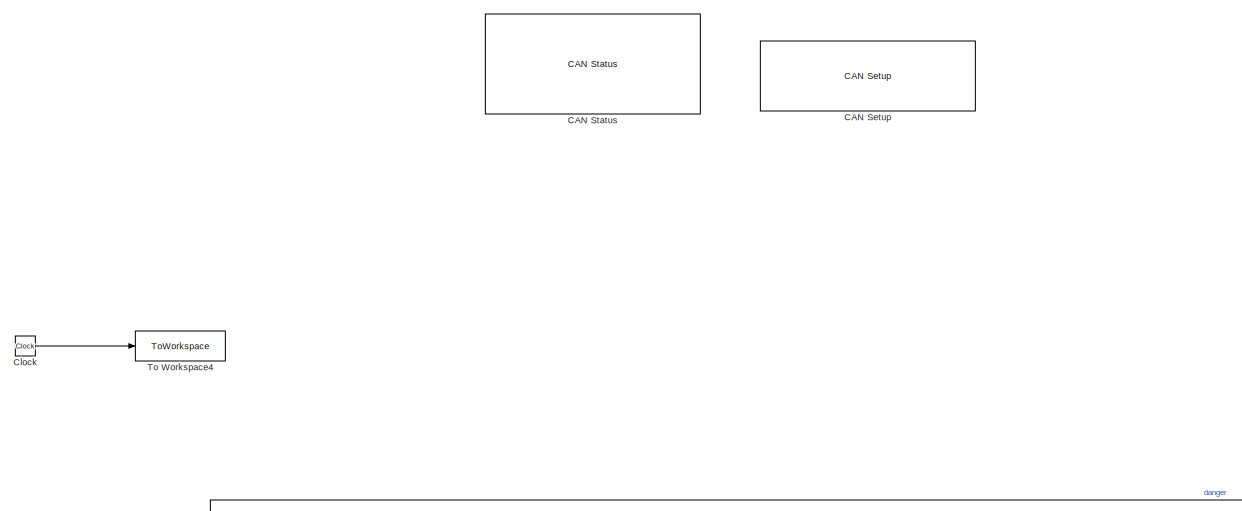
[diagram: root canvas - part 1/5, top center region]
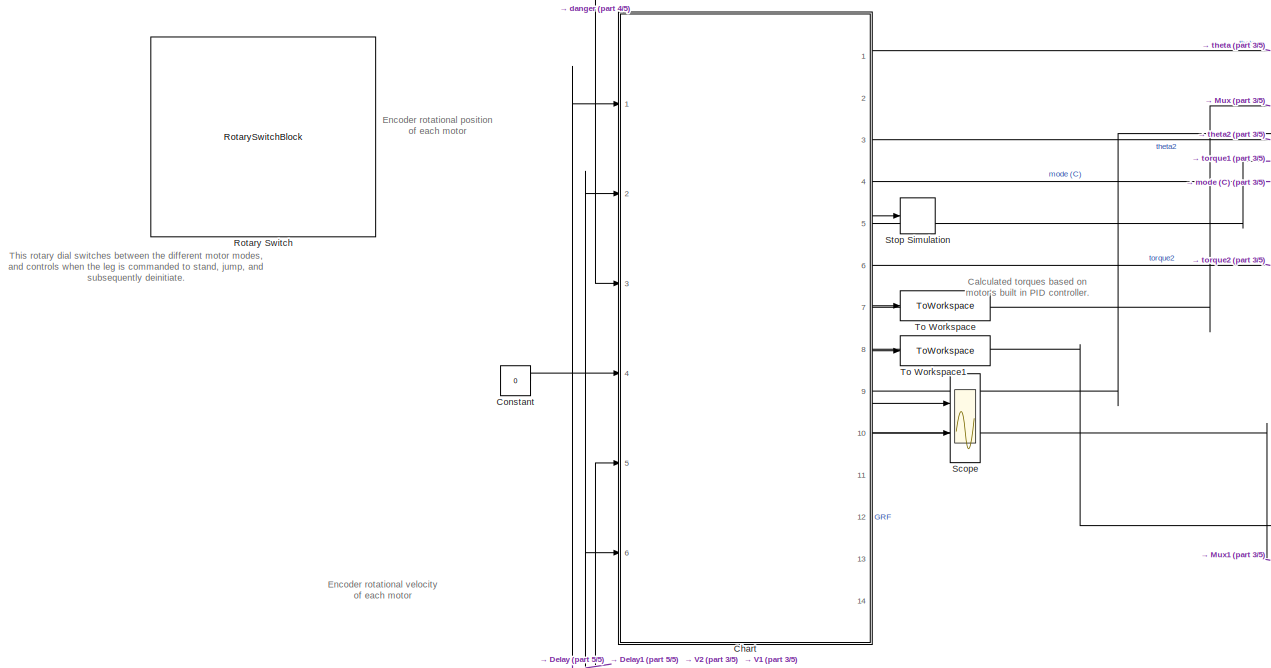
[diagram: root canvas - part 2/5, middle left region]
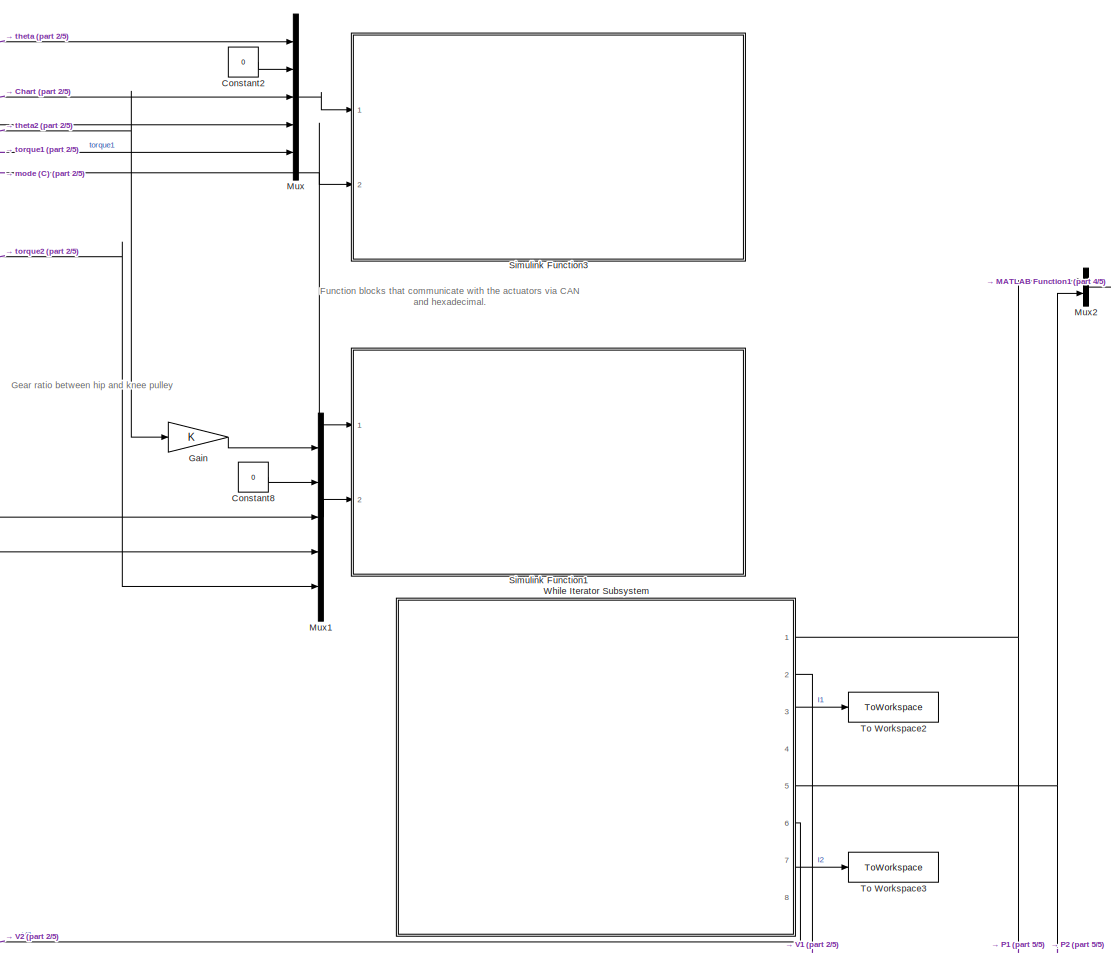
[diagram: root canvas - part 3/5, middle right region]
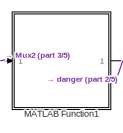
[diagram: root canvas - part 4/5, middle right region]
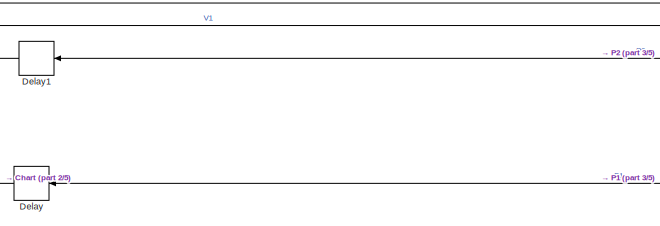
[diagram: root canvas - part 5/5, bottom center region]
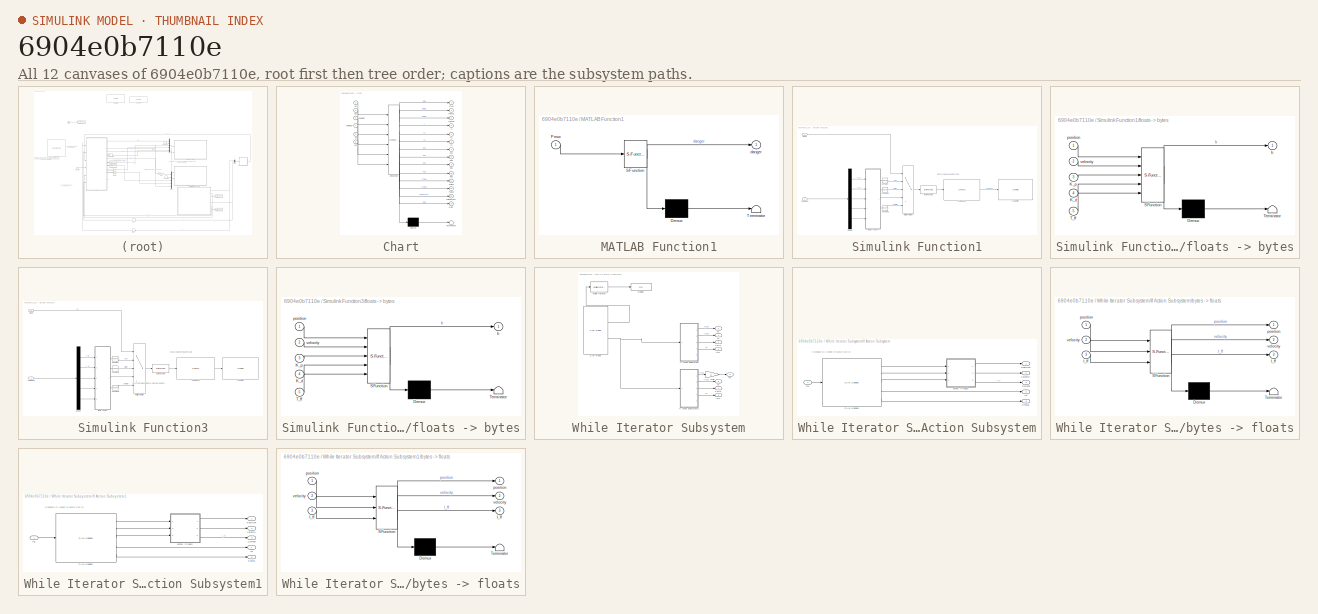
[diagram: thumbnail index - all 12 canvases of the model, root first then tree order]
MODEL slx_6904e0b7110e
KIND model
CONFIG AbsTol = auto
CONFIG EnableMultiTasking = off
CONFIG FixedStep = 0.001
CONFIG MaxStep = auto
CONFIG MinStep = auto
CONFIG RelTol = 1e-3
CONFIG SampleTimeConstraint = Unconstrained
CONFIG SolverName = FixedStepAuto
CONFIG StartTime = 0.0
CONFIG StopTime = inf
BLOCK [Reference] CAN Setup   REF=speedgoatlib_IO691/CAN Setup 
  Ports = []
  SourceBlock = speedgoatlib_IO691/CAN Setup
  SourceProductName = Simulink Real-Time: Speedgoat I/O Blockset
  SourceType = setup_IO691
BLOCK [Reference] CAN Status  REF=speedgoatlib_IO691/CAN Status
  Ports = []
  SourceBlock = speedgoatlib_IO691/CAN Status
  SourceProductName = Simulink Real-Time: Speedgoat I/O Blockset
  SourceType = status_IO691
  UserDataPersistent = on
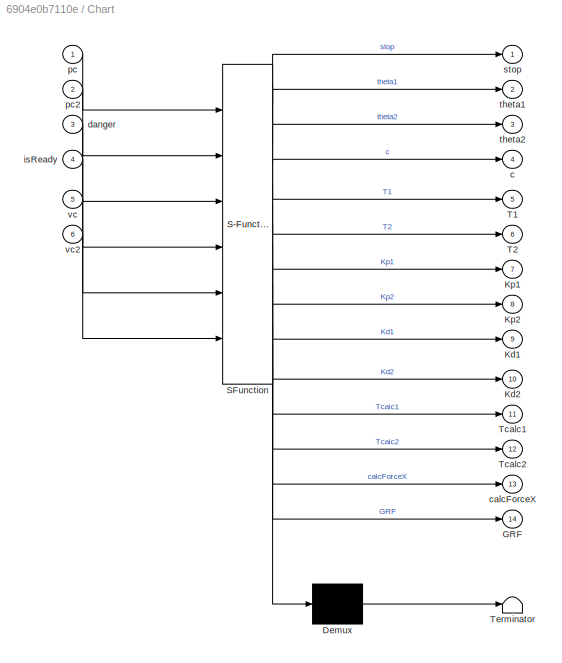
BLOCK [SubSystem] Chart
  ErrorFcn = Stateflow.Translate.translate
  PermitHierarchicalResolution = ExplicitOnly
  PortSchema = {"entries":[{"content":{"sides":[{"content":{"connectorIds":["In1","In2","In3","In4","In5","In6"]},"type":"ConnectorPlacement.EquallySpacedRectSide","uuid":"09499f21-f50c-4ce4-914e-8b9942bcc246"},{"content":{"connectorIds":["Out2","Out7","Out9","Out5","Out1","Out4","Out11","Out12","Out13","Out14","Out3","Out8","Out10","Out6"],"side":"RIGHT"},"type":"ConnectorPlacement.EquallySpacedRectSide","uuid"...<+366ch>
  Ports = [6, 14]
  RequestExecContextInheritance = off
  SFBlockType = Chart
  TreatAsAtomicUnit = on
BLOCK [Demux] Chart/ Demux 
  Outputs = 1
  Ports = [1, 1]
BLOCK [S-Function] Chart/ SFunction 
  EnableBusSupport = on
  FunctionName = sf_sfun
  PortCounts = [6 15]
  Ports = [6, 15]
  SFcnIsStateOwnerBlock = off
  SFunctionDeploymentMode = off
  Tag = Stateflow S-Function 8
BLOCK [Terminator] Chart/ Terminator 
BLOCK [Outport] Chart/GRF
  Port = 14
BLOCK [Outport] Chart/Kd1
  Port = 9
BLOCK [Outport] Chart/Kd2
  Port = 10
BLOCK [Outport] Chart/Kp1
  Port = 7
BLOCK [Outport] Chart/Kp2
  Port = 8
BLOCK [Outport] Chart/T1
  Port = 5
BLOCK [Outport] Chart/T2
  Port = 6
BLOCK [Outport] Chart/Tcalc1
  Port = 11
BLOCK [Outport] Chart/Tcalc2
  Port = 12
BLOCK [Outport] Chart/c
  Port = 4
BLOCK [Outport] Chart/calcForceX
  Port = 13
BLOCK [Inport] Chart/danger
  Port = 3
BLOCK [Inport] Chart/isReady
  Port = 4
BLOCK [Inport] Chart/pc
BLOCK [Inport] Chart/pc2
  Port = 2
BLOCK [Outport] Chart/stop
BLOCK [Outport] Chart/theta1
  Port = 2
BLOCK [Outport] Chart/theta2
  Port = 3
BLOCK [Inport] Chart/vc
  Port = 5
BLOCK [Inport] Chart/vc2
  Port = 6
BLOCK [Clock] Clock
BLOCK [Constant] Constant
  Value = 0
BLOCK [Constant] Constant2
  Value = 0
BLOCK [Constant] Constant8
  Value = 0
BLOCK [Delay] Delay
  DelayLength = 1
  InputPortMap = u0
  Ports = [1, 1]
BLOCK [Delay] Delay1
  DelayLength = 1
  InputPortMap = u0
  Ports = [1, 1]
BLOCK [Gain] Gain
BLOCK [SubSystem] MATLAB Function1
  ErrorFcn = Stateflow.Translate.translate
  PermitHierarchicalResolution = ExplicitOnly
  Ports = [1, 1]
  RequestExecContextInheritance = off
  SFBlockType = MATLAB Function
  TreatAsAtomicUnit = on
BLOCK [Demux] MATLAB Function1/ Demux 
  Outputs = 1
  Ports = [1, 1]
BLOCK [S-Function] MATLAB Function1/ SFunction 
  EnableBusSupport = on
  FunctionName = sf_sfun
  PortCounts = [1 2]
  Ports = [1, 2]
  SFcnIsStateOwnerBlock = off
  SFunctionDeploymentMode = off
  Tag = Stateflow S-Function 6
BLOCK [Terminator] MATLAB Function1/ Terminator 
BLOCK [Inport] MATLAB Function1/Pmux
BLOCK [Outport] MATLAB Function1/danger
BLOCK [Mux] Mux
  DisplayOption = bar
  Inputs = 5
  Ports = [5, 1]
BLOCK [Mux] Mux1
  DisplayOption = bar
  Inputs = 5
  Ports = [5, 1]
BLOCK [Mux] Mux2
  DisplayOption = bar
  Inputs = 2
  Ports = [2, 1]
BLOCK [RotarySwitchBlock] Rotary Switch
BLOCK [Scope] Scope
  Floating = off
  NumInputPorts = 2
  Ports = [2]
  ScopeSpecificationString = Simulink.scopes.TimeScopeBlockCfg('CurrentConfiguration', extmgr.ConfigurationSet(extmgr.Configuration('Core','General UI',true),extmgr.Configuration('Core','Source UI',true),extmgr.Configuration('Sources','WiredSimulink',true),extmgr.Configuration('Visuals','Time Domain',true,'SerializedDisplays',{struct('MinYLimReal','-151.48363','MaxYLimReal','51.23966','YLabelReal','','MinYLimMag',' 0.00000','...<+1365ch>
BLOCK [SubSystem] Simulink Function1
  Ports = [2]
  RequestExecContextInheritance = off
  TreatAsAtomicUnit = on
BLOCK [Reference] Simulink Function1/Byte Packing  REF=slrealtimeutilitieslib/Byte Packing
  Ports = [1, 1]
  SourceBlock = slrealtimeutilitieslib/Byte Packing
  SourceProductBaseCode = XP
  SourceType = slrealtimebytepacking
BLOCK [Reference] Simulink Function1/CAN Pack1  REF=canmsglib/CAN Pack
  Ports = [1, 1]
  SourceBlock = canmsglib/CAN Pack
  SourceProductBaseCode = ME,XP,VN
  SourceType = CAN Pack
BLOCK [Reference] Simulink Function1/CAN Write1  REF=speedgoatlib_IO691/CAN Write
  Ports = [1]
  SourceBlock = speedgoatlib_IO691/CAN Write
  SourceProductName = Simulink Real-Time: Speedgoat I/O Blockset
  SourceType = write_IO691
BLOCK [Inport] Simulink Function1/Command
  Port = 2
BLOCK [Constant] Simulink Function1/Constant
  Value = [0xFF, 0xFF, 0xFF, 0xFF, 0xFF, 0xFF, 0xFF, 0xFE]
BLOCK [Constant] Simulink Function1/Constant1
  Value = [0xFF, 0xFF, 0xFF, 0xFF, 0xFF, 0xFF, 0xFF, 0xFC]
BLOCK [Constant] Simulink Function1/Constant2
  Value = [0xFF, 0xFF, 0xFF, 0xFF, 0xFF, 0xFF, 0xFF, 0xFD]
BLOCK [Demux] Simulink Function1/Demux
  Outputs = 5
  Ports = [1, 5]
BLOCK [Inport] Simulink Function1/Mode
BLOCK [MultiPortSwitch] Simulink Function1/Multiport Switch
  DiagnosticForDefault = None
  InputSameDT = off
  Inputs = 4
  Ports = [5, 1]
  SaturateOnIntegerOverflow = off
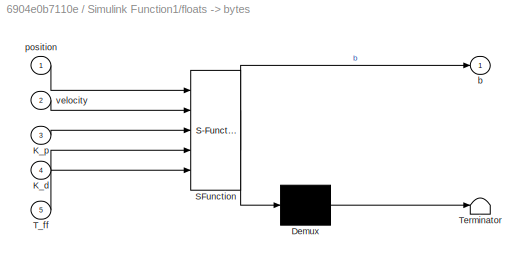
BLOCK [SubSystem] Simulink Function1/floats -> bytes
  ErrorFcn = Stateflow.Translate.translate
  PermitHierarchicalResolution = ExplicitOnly
  Ports = [5, 1]
  RequestExecContextInheritance = off
  SFBlockType = MATLAB Function
  TreatAsAtomicUnit = on
BLOCK [Demux] Simulink Function1/floats -> bytes/ Demux 
  Outputs = 1
  Ports = [1, 1]
BLOCK [S-Function] Simulink Function1/floats -> bytes/ SFunction 
  EnableBusSupport = on
  FunctionName = sf_sfun
  PortCounts = [5 2]
  Ports = [5, 2]
  SFcnIsStateOwnerBlock = off
  SFunctionDeploymentMode = off
  Tag = Stateflow S-Function 3
BLOCK [Terminator] Simulink Function1/floats -> bytes/ Terminator 
BLOCK [Inport] Simulink Function1/floats -> bytes/K_d
  Port = 4
BLOCK [Inport] Simulink Function1/floats -> bytes/K_p
  Port = 3
BLOCK [Inport] Simulink Function1/floats -> bytes/T_ff
  Port = 5
BLOCK [Outport] Simulink Function1/floats -> bytes/b
BLOCK [Inport] Simulink Function1/floats -> bytes/position
BLOCK [Inport] Simulink Function1/floats -> bytes/velocity
  Port = 2
BLOCK [SubSystem] Simulink Function3
  Ports = [2]
  RequestExecContextInheritance = off
  TreatAsAtomicUnit = on
BLOCK [Reference] Simulink Function3/Byte Packing  REF=slrealtimeutilitieslib/Byte Packing
  Ports = [1, 1]
  SourceBlock = slrealtimeutilitieslib/Byte Packing
  SourceProductBaseCode = XP
  SourceType = slrealtimebytepacking
BLOCK [Reference] Simulink Function3/CAN Pack1  REF=canmsglib/CAN Pack
  Ports = [1, 1]
  SourceBlock = canmsglib/CAN Pack
  SourceProductBaseCode = ME,XP,VN
  SourceType = CAN Pack
BLOCK [Reference] Simulink Function3/CAN Write1  REF=speedgoatlib_IO691/CAN Write
  Ports = [1]
  SourceBlock = speedgoatlib_IO691/CAN Write
  SourceProductName = Simulink Real-Time: Speedgoat I/O Blockset
  SourceType = write_IO691
BLOCK [Inport] Simulink Function3/Command
BLOCK [Constant] Simulink Function3/Constant
  Value = [0xFF, 0xFF, 0xFF, 0xFF, 0xFF, 0xFF, 0xFF, 0xFE]
BLOCK [Constant] Simulink Function3/Constant1
  Value = [0xFF, 0xFF, 0xFF, 0xFF, 0xFF, 0xFF, 0xFF, 0xFC]
BLOCK [Constant] Simulink Function3/Constant2
  Value = [0xFF, 0xFF, 0xFF, 0xFF, 0xFF, 0xFF, 0xFF, 0xFD]
BLOCK [Demux] Simulink Function3/Demux
  Outputs = 5
  Ports = [1, 5]
BLOCK [Inport] Simulink Function3/Mode
  Port = 2
BLOCK [MultiPortSwitch] Simulink Function3/Multiport Switch
  DiagnosticForDefault = None
  InputSameDT = off
  Inputs = 4
  Ports = [5, 1]
  SaturateOnIntegerOverflow = off
BLOCK [SubSystem] Simulink Function3/floats -> bytes
  ErrorFcn = Stateflow.Translate.translate
  PermitHierarchicalResolution = ExplicitOnly
  Ports = [5, 1]
  RequestExecContextInheritance = off
  SFBlockType = MATLAB Function
  TreatAsAtomicUnit = on
BLOCK [Demux] Simulink Function3/floats -> bytes/ Demux 
  Outputs = 1
  Ports = [1, 1]
BLOCK [S-Function] Simulink Function3/floats -> bytes/ SFunction 
  EnableBusSupport = on
  FunctionName = sf_sfun
  PortCounts = [5 2]
  Ports = [5, 2]
  SFcnIsStateOwnerBlock = off
  SFunctionDeploymentMode = off
  Tag = Stateflow S-Function 5
BLOCK [Terminator] Simulink Function3/floats -> bytes/ Terminator 
BLOCK [Inport] Simulink Function3/floats -> bytes/K_d
  Port = 4
BLOCK [Inport] Simulink Function3/floats -> bytes/K_p
  Port = 3
BLOCK [Inport] Simulink Function3/floats -> bytes/T_ff
  Port = 5
BLOCK [Outport] Simulink Function3/floats -> bytes/b
BLOCK [Inport] Simulink Function3/floats -> bytes/position
BLOCK [Inport] Simulink Function3/floats -> bytes/velocity
  Port = 2
BLOCK [Stop] Stop Simulation
BLOCK [ToWorkspace] To Workspace
  FixptAsFi = on
  MaxDataPoints = inf
  Ports = [1]
  SampleTime = -1
  VariableName = Tcalc1
BLOCK [ToWorkspace] To Workspace1
  FixptAsFi = on
  MaxDataPoints = inf
  Ports = [1]
  SampleTime = -1
  VariableName = Tcalc2
BLOCK [ToWorkspace] To Workspace2
  FixptAsFi = on
  MaxDataPoints = inf
  Ports = [1]
  SampleTime = -1
  VariableName = curr1
BLOCK [ToWorkspace] To Workspace3
  FixptAsFi = on
  MaxDataPoints = inf
  Ports = [1]
  SampleTime = -1
  VariableName = curr2
BLOCK [ToWorkspace] To Workspace4
  FixptAsFi = on
  MaxDataPoints = inf
  Ports = [1]
  SampleTime = -1
  VariableName = timeout
BLOCK [SubSystem] While Iterator Subsystem
  Ports = [0, 8]
  RequestExecContextInheritance = off
  TreatAsAtomicUnit = on
BLOCK [Reference] While Iterator Subsystem/CAN Read  REF=speedgoatlib_IO691/CAN Read
  Ports = [0, 2]
  SourceBlock = speedgoatlib_IO691/CAN Read
  SourceProductName = Simulink Real-Time: Speedgoat I/O Blockset
  SourceType = read_IO691
BLOCK [Outport] While Iterator Subsystem/Curr1
  Port = 3
BLOCK [Outport] While Iterator Subsystem/Curr2
  Port = 7
BLOCK [Display] While Iterator Subsystem/Display
  Decimation = 1
  Ports = [1]
BLOCK [Gain] While Iterator Subsystem/Gain
BLOCK [Outport] While Iterator Subsystem/ID1
  Port = 4
BLOCK [Outport] While Iterator Subsystem/ID2
  Port = 8
BLOCK [SubSystem] While Iterator Subsystem/If Action Subsystem
  Ports = [1, 5]
  RequestExecContextInheritance = off
  TreatAsAtomicUnit = on
BLOCK [Reference] While Iterator Subsystem/If Action Subsystem/CAN Unpack  REF=canmsglib/CAN Unpack
  Ports = [1, 5]
  SourceBlock = canmsglib/CAN Unpack
  SourceProductBaseCode = ME,XP,VN
  SourceType = CAN Unpack
BLOCK [Outport] While Iterator Subsystem/If Action Subsystem/Current
  Port = 3
BLOCK [Outport] While Iterator Subsystem/If Action Subsystem/ID
  Port = 4
BLOCK [Inport] While Iterator Subsystem/If Action Subsystem/In1
BLOCK [Outport] While Iterator Subsystem/If Action Subsystem/Position
BLOCK [Outport] While Iterator Subsystem/If Action Subsystem/Status
  Port = 5
BLOCK [Outport] While Iterator Subsystem/If Action Subsystem/Velocity
  Port = 2
BLOCK [SubSystem] While Iterator Subsystem/If Action Subsystem/bytes -> floats
  ErrorFcn = Stateflow.Translate.translate
  PermitHierarchicalResolution = ExplicitOnly
  Ports = [3, 3]
  RequestExecContextInheritance = off
  SFBlockType = MATLAB Function
  TreatAsAtomicUnit = on
BLOCK [Demux] While Iterator Subsystem/If Action Subsystem/bytes -> floats/ Demux 
  Outputs = 1
  Ports = [1, 1]
BLOCK [S-Function] While Iterator Subsystem/If Action Subsystem/bytes -> floats/ SFunction 
  EnableBusSupport = on
  FunctionName = sf_sfun
  PortCounts = [3 4]
  Ports = [3, 4]
  SFcnIsStateOwnerBlock = off
  SFunctionDeploymentMode = off
  Tag = Stateflow S-Function 2
BLOCK [Terminator] While Iterator Subsystem/If Action Subsystem/bytes -> floats/ Terminator 
BLOCK [Outport] While Iterator Subsystem/If Action Subsystem/bytes -> floats/I_ff
  Port = 3
BLOCK [Inport] While Iterator Subsystem/If Action Subsystem/bytes -> floats/I_ff 
  Port = 3
BLOCK [Outport] While Iterator Subsystem/If Action Subsystem/bytes -> floats/position
BLOCK [Inport] While Iterator Subsystem/If Action Subsystem/bytes -> floats/position 
BLOCK [Outport] While Iterator Subsystem/If Action Subsystem/bytes -> floats/velocity
  Port = 2
BLOCK [Inport] While Iterator Subsystem/If Action Subsystem/bytes -> floats/velocity 
  Port = 2
BLOCK [SubSystem] While Iterator Subsystem/If Action Subsystem1
  Ports = [1, 5]
  RequestExecContextInheritance = off
  TreatAsAtomicUnit = on
BLOCK [Reference] While Iterator Subsystem/If Action Subsystem1/CAN Unpack  REF=canmsglib/CAN Unpack
  Ports = [1, 5]
  SourceBlock = canmsglib/CAN Unpack
  SourceProductBaseCode = ME,XP,VN
  SourceType = CAN Unpack
BLOCK [Outport] While Iterator Subsystem/If Action Subsystem1/Current
  Port = 3
BLOCK [Outport] While Iterator Subsystem/If Action Subsystem1/ID
  Port = 4
BLOCK [Inport] While Iterator Subsystem/If Action Subsystem1/In1
BLOCK [Outport] While Iterator Subsystem/If Action Subsystem1/Position
BLOCK [Outport] While Iterator Subsystem/If Action Subsystem1/Status
  Port = 5
BLOCK [Outport] While Iterator Subsystem/If Action Subsystem1/Velocity
  Port = 2
BLOCK [SubSystem] While Iterator Subsystem/If Action Subsystem1/bytes -> floats
  ErrorFcn = Stateflow.Translate.translate
  PermitHierarchicalResolution = ExplicitOnly
  Ports = [3, 3]
  RequestExecContextInheritance = off
  SFBlockType = MATLAB Function
  TreatAsAtomicUnit = on
BLOCK [Demux] While Iterator Subsystem/If Action Subsystem1/bytes -> floats/ Demux 
  Outputs = 1
  Ports = [1, 1]
BLOCK [S-Function] While Iterator Subsystem/If Action Subsystem1/bytes -> floats/ SFunction 
  EnableBusSupport = on
  FunctionName = sf_sfun
  PortCounts = [3 4]
  Ports = [3, 4]
  SFcnIsStateOwnerBlock = off
  SFunctionDeploymentMode = off
  Tag = Stateflow S-Function 1
BLOCK [Terminator] While Iterator Subsystem/If Action Subsystem1/bytes -> floats/ Terminator 
BLOCK [Outport] While Iterator Subsystem/If Action Subsystem1/bytes -> floats/I_ff
  Port = 3
BLOCK [Inport] While Iterator Subsystem/If Action Subsystem1/bytes -> floats/I_ff 
  Port = 3
BLOCK [Outport] While Iterator Subsystem/If Action Subsystem1/bytes -> floats/position
BLOCK [Inport] While Iterator Subsystem/If Action Subsystem1/bytes -> floats/position 
BLOCK [Outport] While Iterator Subsystem/If Action Subsystem1/bytes -> floats/velocity
  Port = 2
BLOCK [Inport] While Iterator Subsystem/If Action Subsystem1/bytes -> floats/velocity 
  Port = 2
BLOCK [Outport] While Iterator Subsystem/P1
BLOCK [Outport] While Iterator Subsystem/P2
  Port = 5
BLOCK [Outport] While Iterator Subsystem/V1
  Port = 2
BLOCK [Outport] While Iterator Subsystem/V2
  Port = 6
BLOCK [WhileIterator] While Iterator Subsystem/While Iterator
  MaxIters = -1
  Ports = [1, 1]
  ResetStates = reset
  ShowIterationPort = on
  WhileBlockType = do-while
ANNOTATION (root): Calculated torques based on motor's built in PID controller.
ANNOTATION (root): Encoder rotational position of each motor
ANNOTATION (root): Encoder rotational velocity of each motor
ANNOTATION (root): Function blocks that communicate with the actuators via CAN and hexadecimal.
ANNOTATION (root): Gear ratio between hip and knee pulley
ANNOTATION (root): This rotary dial switches between the different motor modes, and controls when the leg is commanded to stand, jump, and subsequently deinitiate.
ANNOTATION Simulink Function1: Standard ID Needs to Match Can ID
ANNOTATION Simulink Function3: Converts inputted data to an 8-bit unsigned integer
ANNOTATION Simulink Function3: Standard ID Needs to Match Can ID
ANNOTATION While Iterator Subsystem/If Action Subsystem: Standard ID Needs to Match Can ID
ANNOTATION While Iterator Subsystem/If Action Subsystem1: Standard ID Needs to Match Can ID
LINE Chart:1 -> Stop Simulation:1
LINE Chart:10 -> Mux1:4
LINE Chart:11 -> To Workspace:1
LINE Chart:12 -> To Workspace1:1
LINE Chart:13 -> Scope:1
LINE Chart:14 -> Scope:2
LINE Chart:2 -> Mux:1
LINE Chart:3 -> Gain:1
NET Chart:4 -> Simulink Function1:1, Simulink Function3:2
LINE Chart:5 -> Mux:5
LINE Chart:6 -> Mux1:5
LINE Chart:7 -> Mux:3
LINE Chart:8 -> Mux1:3
LINE Chart:9 -> Mux:4
LINE Clock:1 -> To Workspace4:1
LINE Constant2:1 -> Mux:2
LINE Constant8:1 -> Mux1:2
LINE Constant:1 -> Chart:4
LINE Delay1:1 -> Chart:2
LINE Delay:1 -> Chart:1
LINE Gain:1 -> Mux1:1
LINE MATLAB Function1:1 -> Chart:3
LINE Mux1:1 -> Simulink Function1:2
LINE Mux2:1 -> MATLAB Function1:1
LINE Mux:1 -> Simulink Function3:1
LINE Simulink Function1/Byte Packing:1 -> Simulink Function1/CAN Pack1:1
LINE Simulink Function1/CAN Pack1:1 -> Simulink Function1/CAN Write1:1
LINE Simulink Function1/Command:1 -> Simulink Function1/Demux:1
LINE Simulink Function1/Constant1:1 -> Simulink Function1/Multiport Switch:3
LINE Simulink Function1/Constant2:1 -> Simulink Function1/Multiport Switch:5
LINE Simulink Function1/Constant:1 -> Simulink Function1/Multiport Switch:2
LINE Simulink Function1/Demux:1 -> Simulink Function1/floats -> bytes:1
LINE Simulink Function1/Demux:2 -> Simulink Function1/floats -> bytes:2
LINE Simulink Function1/Demux:3 -> Simulink Function1/floats -> bytes:3
LINE Simulink Function1/Demux:4 -> Simulink Function1/floats -> bytes:4
LINE Simulink Function1/Demux:5 -> Simulink Function1/floats -> bytes:5
LINE Simulink Function1/Mode:1 -> Simulink Function1/Multiport Switch:1
LINE Simulink Function1/Multiport Switch:1 -> Simulink Function1/Byte Packing:1
LINE Simulink Function1/floats -> bytes:1 -> Simulink Function1/Multiport Switch:4
LINE Simulink Function3/Byte Packing:1 -> Simulink Function3/CAN Pack1:1
LINE Simulink Function3/CAN Pack1:1 -> Simulink Function3/CAN Write1:1
LINE Simulink Function3/Command:1 -> Simulink Function3/Demux:1
LINE Simulink Function3/Constant1:1 -> Simulink Function3/Multiport Switch:3
LINE Simulink Function3/Constant2:1 -> Simulink Function3/Multiport Switch:5
LINE Simulink Function3/Constant:1 -> Simulink Function3/Multiport Switch:2
LINE Simulink Function3/Demux:1 -> Simulink Function3/floats -> bytes:1
LINE Simulink Function3/Demux:2 -> Simulink Function3/floats -> bytes:2
LINE Simulink Function3/Demux:3 -> Simulink Function3/floats -> bytes:3
LINE Simulink Function3/Demux:4 -> Simulink Function3/floats -> bytes:4
LINE Simulink Function3/Demux:5 -> Simulink Function3/floats -> bytes:5
LINE Simulink Function3/Mode:1 -> Simulink Function3/Multiport Switch:1
LINE Simulink Function3/Multiport Switch:1 -> Simulink Function3/Byte Packing:1
LINE Simulink Function3/floats -> bytes:1 -> Simulink Function3/Multiport Switch:4
LINE While Iterator Subsystem/CAN Read:1 -> While Iterator Subsystem/While Iterator:1
NET While Iterator Subsystem/CAN Read:2 -> While Iterator Subsystem/If Action Subsystem1:1, While Iterator Subsystem/If Action Subsystem:1
LINE While Iterator Subsystem/Gain:1 -> While Iterator Subsystem/P2:1
LINE While Iterator Subsystem/If Action Subsystem/CAN Unpack:1 -> While Iterator Subsystem/If Action Subsystem/bytes -> floats:1
LINE While Iterator Subsystem/If Action Subsystem/CAN Unpack:2 -> While Iterator Subsystem/If Action Subsystem/bytes -> floats:2
LINE While Iterator Subsystem/If Action Subsystem/CAN Unpack:3 -> While Iterator Subsystem/If Action Subsystem/bytes -> floats:3
LINE While Iterator Subsystem/If Action Subsystem/CAN Unpack:4 -> While Iterator Subsystem/If Action Subsystem/ID:1
LINE While Iterator Subsystem/If Action Subsystem/CAN Unpack:5 -> While Iterator Subsystem/If Action Subsystem/Status:1
LINE While Iterator Subsystem/If Action Subsystem/In1:1 -> While Iterator Subsystem/If Action Subsystem/CAN Unpack:1
LINE While Iterator Subsystem/If Action Subsystem/bytes -> floats:1 -> While Iterator Subsystem/If Action Subsystem/Position:1
LINE While Iterator Subsystem/If Action Subsystem/bytes -> floats:2 -> While Iterator Subsystem/If Action Subsystem/Velocity:1
LINE While Iterator Subsystem/If Action Subsystem/bytes -> floats:3 -> While Iterator Subsystem/If Action Subsystem/Current:1
LINE While Iterator Subsystem/If Action Subsystem1/CAN Unpack:1 -> While Iterator Subsystem/If Action Subsystem1/bytes -> floats:1
LINE While Iterator Subsystem/If Action Subsystem1/CAN Unpack:2 -> While Iterator Subsystem/If Action Subsystem1/bytes -> floats:2
LINE While Iterator Subsystem/If Action Subsystem1/CAN Unpack:3 -> While Iterator Subsystem/If Action Subsystem1/bytes -> floats:3
LINE While Iterator Subsystem/If Action Subsystem1/CAN Unpack:4 -> While Iterator Subsystem/If Action Subsystem1/ID:1
LINE While Iterator Subsystem/If Action Subsystem1/CAN Unpack:5 -> While Iterator Subsystem/If Action Subsystem1/Status:1
LINE While Iterator Subsystem/If Action Subsystem1/In1:1 -> While Iterator Subsystem/If Action Subsystem1/CAN Unpack:1
LINE While Iterator Subsystem/If Action Subsystem1/bytes -> floats:1 -> While Iterator Subsystem/If Action Subsystem1/Position:1
LINE While Iterator Subsystem/If Action Subsystem1/bytes -> floats:2 -> While Iterator Subsystem/If Action Subsystem1/Velocity:1
LINE While Iterator Subsystem/If Action Subsystem1/bytes -> floats:3 -> While Iterator Subsystem/If Action Subsystem1/Current:1
LINE While Iterator Subsystem/If Action Subsystem1:1 -> While Iterator Subsystem/Gain:1
LINE While Iterator Subsystem/If Action Subsystem1:2 -> While Iterator Subsystem/V2:1
LINE While Iterator Subsystem/If Action Subsystem1:3 -> While Iterator Subsystem/Curr2:1
LINE While Iterator Subsystem/If Action Subsystem1:4 -> While Iterator Subsystem/ID2:1
LINE While Iterator Subsystem/If Action Subsystem:1 -> While Iterator Subsystem/P1:1
LINE While Iterator Subsystem/If Action Subsystem:2 -> While Iterator Subsystem/V1:1
LINE While Iterator Subsystem/If Action Subsystem:3 -> While Iterator Subsystem/Curr1:1
LINE While Iterator Subsystem/If Action Subsystem:4 -> While Iterator Subsystem/ID1:1
LINE While Iterator Subsystem/While Iterator:1 -> While Iterator Subsystem/Display:1
NET While Iterator Subsystem:1 -> Delay:1, Mux2:1
LINE While Iterator Subsystem:2 -> Chart:5
LINE While Iterator Subsystem:3 -> To Workspace2:1
NET While Iterator Subsystem:5 -> Delay1:1, Mux2:2
LINE While Iterator Subsystem:6 -> Chart:6
LINE While Iterator Subsystem:7 -> To Workspace3:1
note: NET lines group one-source signal fan-out (src -> all destinations, sorted); 1:1 wires keep LINE
CHART While Iterator
Subsystem/If Action
Subsystem1/bytes -> floats states=1 transitions=1
  STATE_LABEL 'eML_blk_kernel()'
  STATE_LABEL 'SCRIPT:\nfunction [position, velocity, I_ff] = fcn(position, velocity, I_ff)\n\nP_MIN  =-95.5;  % [rad]\nP_MAX  = 95.5;  % [rad]\nV_MIN  =-45;    % [rad/s]\nV_MAX  = 45;    % [rad/s]\nI_MIN  =-40;    % []\nI_MAX  = 40;    % []\n\nposition = position*(P_MAX  - P_MIN)/65535+ P_MIN;\nvelocity = velocity*(V_MAX  - V_MIN)/4095 + V_MIN;\nI_ff     = I_ff*(I_MAX  - I_MIN)/4095 + I_MIN;'
CHART While Iterator
Subsystem/If Action
Subsystem/bytes -> floats states=1 transitions=1
  STATE_LABEL 'eML_blk_kernel()'
  STATE_LABEL 'SCRIPT:\nfunction [position, velocity, I_ff] = fcn(position, velocity, I_ff)\n\nP_MIN  =-95.5;  % [rad]\nP_MAX  = 95.5;  % [rad]\nV_MIN  =-45;    % [rad/s]\nV_MAX  = 45;    % [rad/s]\nI_MIN  =-40;    % []\nI_MAX  = 40;    % []\n\nposition = position*(P_MAX  - P_MIN)/65535+ P_MIN;\nvelocity = velocity*(V_MAX  - V_MIN)/4095 + V_MIN;\nI_ff     = I_ff*(I_MAX  - I_MIN)/4095 + I_MIN;'
CHART Simulink Function1/floats -> bytes states=1 transitions=1
  STATE_LABEL 'eML_blk_kernel()'
  STATE_LABEL 'SCRIPT:\nfunction b = fcn(position, velocity, K_p, K_d, T_ff)\n\nP_MIN  =-95.5;  % [rad]\nP_MAX  = 95.5;  % [rad]\nV_MIN  =-45;    % [rad/s] 30 to 45\nV_MAX  = 45;    % [rad/s]\nKP_MIN = 0;     % [Nm/rad]\nKP_MAX = 500;   % [Nm/rad]\nKD_MIN = 0;     % [Nm*s/rad\nKD_MAX = 5;     % [Nm*s/rad\nT_MIN  =-18;    % [Nm]\nT_MAX  = 18;    % [Nm]\n\nposition = floor((max(min(position,P_MAX) ,P_MIN)  - P_MIN )*65535/(P_MA...<+891ch>'
CHART Simulink Function3/floats -> bytes states=1 transitions=1
  STATE_LABEL 'eML_blk_kernel()'
  STATE_LABEL 'SCRIPT:\nfunction b = fcn(position, velocity, K_p, K_d, T_ff)\n\nP_MIN  =-95.5;  % [rad]\nP_MAX  = 95.5;  % [rad]\nV_MIN  =-45;    % [rad/s] 30 to 45\nV_MAX  = 45;    % [rad/s]\nKP_MIN = 0;     % [Nm/rad]\nKP_MAX = 500;   % [Nm/rad]\nKD_MIN = 0;     % [Nm*s/rad\nKD_MAX = 5;     % [Nm*s/rad\nT_MIN  =-18;    % [Nm]\nT_MAX  = 18;    % [Nm]\n\nposition = floor((max(min(position,P_MAX) ,P_MIN)  - P_MIN )*65535/(P_MA...<+891ch>'
CHART MATLAB Function1 states=1 transitions=1
  STATE_LABEL 'eML_blk_kernel()'
  STATE_LABEL 'SCRIPT:\nfunction danger = isDanger(Pmux)\n    % Pmux position matrix radians\n    %       [p(ID1),p(ID2),p(ID3),p(IDN)]\n\n    \n    p1Max = 2; \n    p1Min = -2;\n    p2Max = 1.9;\n    p2Min = -1.9;\n    \n    P1 = Pmux(1:2:end);\n    P2 = Pmux(2:2:end);\n       \n    danger = 0;\n    if((0<sum([P1>p1Max] + [P1<p1Min] - [P1<=-95.5])) || (0<sum([P2>p2Max] + [P2<p2Min] - [P2<=-95.5])))\n        danger = 1;\n    end...<+2ch>'
CHART Chart states=11 transitions=14
  STATE_LABEL 'Start'
  STATE_LABEL 'Zero\nentry:\nc = 1;'
  STATE_LABEL 'Init\nentry:\nc = 2;'
  STATE_LABEL 'Command\nentry:\nc = 3;\nduring:\nTcalc1 = getT(theta1, 0, Kp1, Kd1, T1, pc, vc);\nTcalc2 = getT(theta2, 0, Kp2, Kd2, T2, pc2, vc2);\n[GRF,calcForceX] = getF(pc, pc2,Tcalc1,Tcalc2);\n'
  STATE_LABEL 'calcTorque = getT(p,v,Kp,Kd,Tff,currP,currV)'
  STATE_LABEL 'SCRIPT:\nfunction calcTorque = getT(p,v,Kp,Kd,Tff,currP,currV)\n    calcTorque = (Kp*(p-currP) + Kd*(v - currV) + Tff);\nend\n'
  STATE_LABEL 'Stand\nentry:\nto = t;\ntstep = 3;\ntheta1 = pc;\npo1 = theta1;\nslope1 = (pf - po1)/tstep;\ntheta2 = pc2;\npo2 = theta2;\nslope2 = (Th2Th1*pf - po2)/tstep;\nduring:\ntheta1 = po1 + slope1*(t-to);\ntheta2 = po2 + slope2*(t-to);'
  STATE_LABEL '[calcF,calcFX] = getF(pos1,pos2,Tc1,Tc2)'
  STATE_LABEL "SCRIPT:\nfunction [calcF,calcFX] = getF(pos1,pos2,Tc1,Tc2)\n    L1inches = 5.3; %inches\n    L2inches = 6.36; %inches\n    L1 = L1inches * 0.0254; %meters\n    L2 = L2inches * 0.0254; %meters\n\n    J = [(L1 * cos(pos1) + L2 * cos(pos1+pos2)) (L2 * cos(pos1+pos2))\n         (-L1 * sin(pos1) - L2 * sin(pos1+pos2))  (-L2 * sin(pos1+pos2))];\n    T = [Tc1;Tc2];\n    \n    F = ((J')^-1)*T;\n\n    calcF = F(2);\n   ...<+19ch>"
  STATE_LABEL 'Idle'
  STATE_LABEL 'Sit\nentry:\nKp1 = 25;\nKp2 = 25;\nKd1 = 0.1;\nKd2 = 0.1;\ntstep = 3;\nto = t;\ntheta1 = pc;\npo1 = theta1;\nslope1 = (pf - po1)/tstep;\ntheta2 = pc2;\npo2 = theta2;\nslope2 = (Th2Th1*pf - po2)/tstep;\nduring:\ntheta1 = po1 + slope1*(t-to);\ntheta2 = po2 + slope2*(t-to);'
  STATE_LABEL '{pf = -0.8;}'
  STATE_LABEL '[(theta1 >= pf & slope1>0) | (theta1 <= pf & slope1<0)]\n{theta1 = pf; theta2 = theta1 * Th2Th1;}'
  STATE_LABEL '[isReady == 3]{pf = -.8;}'
  STATE_LABEL '[(theta1 >= pf & slope1>0) | (theta1 <= pf & slope1<0)]\n{theta1 = pf; theta2 = theta1 * Th2Th1; done = 1;}'
  STATE_LABEL 'calcTorque = getT(p,v,Kp,Kd,Tff,currP,currV)'
  STATE_LABEL 'SCRIPT:\nfunction calcTorque = getT(p,v,Kp,Kd,Tff,currP,currV)\n    calcTorque = (Kp*(p-currP) + Kd*(v - currV) + Tff);\nend\n'
  STATE_LABEL 'Stand\nentry:\nto = t;\ntstep = 3;\ntheta1 = pc;\npo1 = theta1;\nslope1 = (pf - po1)/tstep;\ntheta2 = pc2;\npo2 = theta2;\nslope2 = (Th2Th1*pf - po2)/tstep;\nduring:\ntheta1 = po1 + slope1*(t-to);\ntheta2 = po2 + slope2*(t-to);'
  STATE_LABEL '[calcF,calcFX] = getF(pos1,pos2,Tc1,Tc2)'
  STATE_LABEL "SCRIPT:\nfunction [calcF,calcFX] = getF(pos1,pos2,Tc1,Tc2)\n    L1inches = 5.3; %inches\n    L2inches = 6.36; %inches\n    L1 = L1inches * 0.0254; %meters\n    L2 = L2inches * 0.0254; %meters\n\n    J = [(L1 * cos(pos1) + L2 * cos(pos1+pos2)) (L2 * cos(pos1+pos2))\n         (-L1 * sin(pos1) - L2 * sin(pos1+pos2))  (-L2 * sin(pos1+pos2))];\n    T = [Tc1;Tc2];\n    \n    F = ((J')^-1)*T;\n\n    calcF = F(2);\n   ...<+19ch>"
  STATE_LABEL 'Idle'
  STATE_LABEL 'Sit\nentry:\nKp1 = 25;\nKp2 = 25;\nKd1 = 0.1;\nKd2 = 0.1;\ntstep = 3;\nto = t;\ntheta1 = pc;\npo1 = theta1;\nslope1 = (pf - po1)/tstep;\ntheta2 = pc2;\npo2 = theta2;\nslope2 = (Th2Th1*pf - po2)/tstep;\nduring:\ntheta1 = po1 + slope1*(t-to);\ntheta2 = po2 + slope2*(t-to);'
  STATE_LABEL 'FinalShutdown\nentry:\nKp1 = 0;\nKp2 = 0;\ntheta1 = 0;\ntheta2 = 0;\nT1 = 0;\nT2 = 0;\n'
  STATE_LABEL 'Deinitiate\nentry:\nc = 4;'
CHART  states=0 transitions=0
CHART  states=0 transitions=0
CHART  states=0 transitions=0
CHART  states=0 transitions=0
CHART  states=0 transitions=0
CHART  states=0 transitions=0
